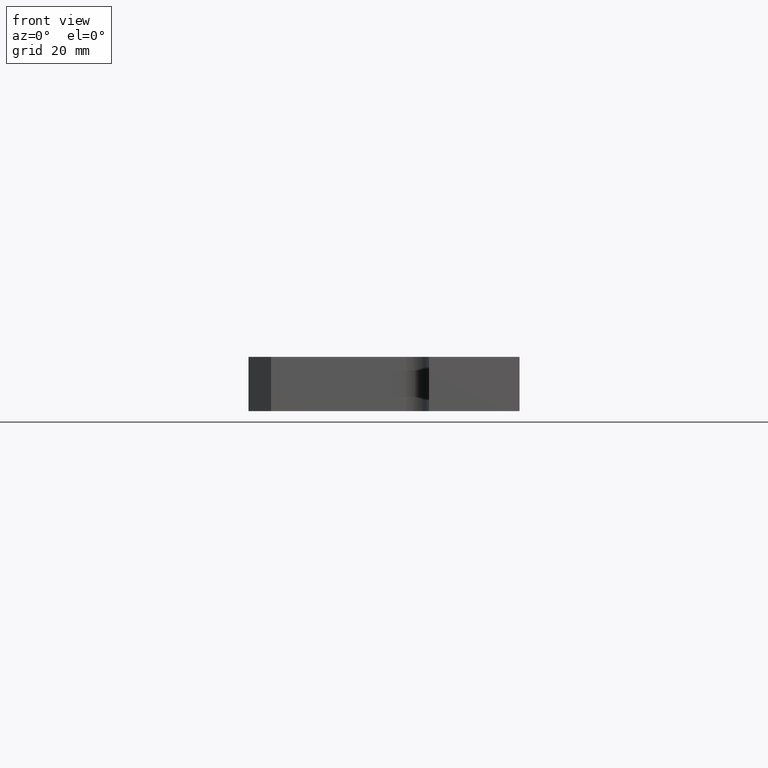
[diagram: clean part render]
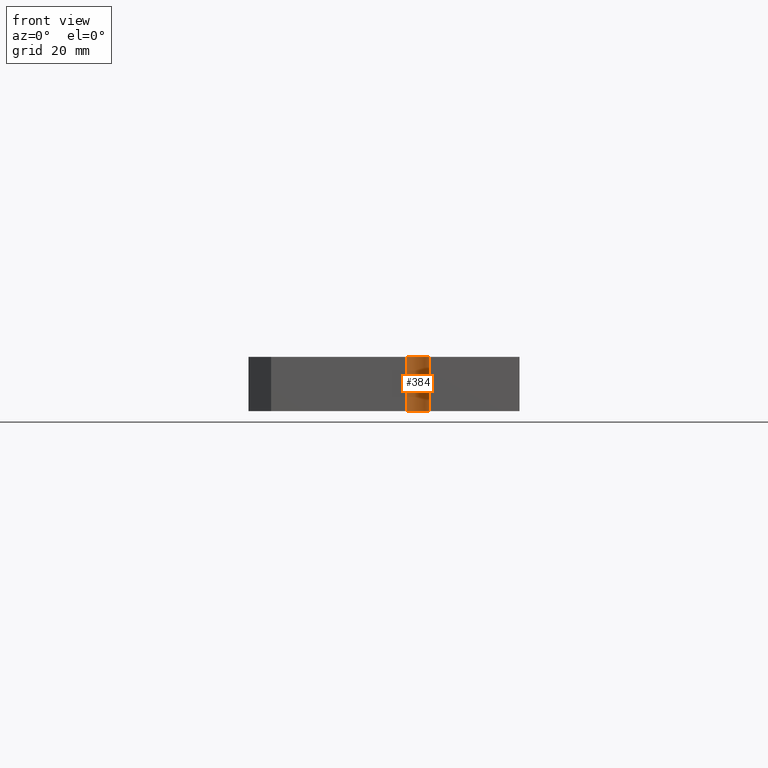
[diagram: same view with one face highlighted and labeled with its STEP entity id]
A machine part, front view. The second image highlights one B-rep face of the part: STEP entity #384.
In plain terms, the highlighted cylindrical surface (edge-blend (fillet) strip) has radius 5 mm, axis along (0, -0, 1).
Its self-contained STEP definition (entity closure, byte-faithful):
#14 = CARTESIAN_POINT ( 'NONE',  ( 34.99999999999999300, -55.00000000000000700, -6.000000000000000000 ) ) ;
#30 = CARTESIAN_POINT ( 'NONE',  ( 34.99999999999999300, -55.00000000000000700, 6.000000000000000000 ) ) ;
#86 = VECTOR ( 'NONE', #672, 1000.000000000000000 ) ;
#93 = LINE ( 'NONE', #30, #86 ) ;
#124 = VERTEX_POINT ( 'NONE', #513 ) ;
#182 = CIRCLE ( 'NONE', #272, 4.999999999999997300 ) ;
#186 = CIRCLE ( 'NONE', #255, 4.999999999999997300 ) ;
#255 = AXIS2_PLACEMENT_3D ( 'NONE', #265, #623, #618 ) ;
#260 = DIRECTION ( 'NONE',  ( 1.000000000000000000, 0.0000000000000000000, 0.0000000000000000000 ) ) ;
#265 = CARTESIAN_POINT ( 'NONE',  ( 34.99999999999999300, -60.00000000000000700, 6.000000000000000000 ) ) ;
#270 = VECTOR ( 'NONE', #344, 1000.000000000000000 ) ;
#272 = AXIS2_PLACEMENT_3D ( 'NONE', #507, #503, #260 ) ;
#277 = LINE ( 'NONE', #353, #270 ) ;
#278 = CYLINDRICAL_SURFACE ( 'NONE', #348, 4.999999999999997300 ) ;
#289 = FACE_OUTER_BOUND ( 'NONE', #613, .T. ) ;
#344 = DIRECTION ( 'NONE',  ( -0.0000000000000000000, 0.0000000000000000000, -1.000000000000000000 ) ) ;
#348 = AXIS2_PLACEMENT_3D ( 'NONE', #559, #516, #545 ) ;
#353 = CARTESIAN_POINT ( 'NONE',  ( 39.99999999999999300, -60.00000000000000700, -6.000000000000000000 ) ) ;
#384 = ADVANCED_FACE ( 'NONE', ( #289 ), #278, .F. ) ;
#415 = ORIENTED_EDGE ( 'NONE', *, *, #555, .F. ) ;
#427 = ORIENTED_EDGE ( 'NONE', *, *, #706, .F. ) ;
#430 = VERTEX_POINT ( 'NONE', #490 ) ;
#470 = EDGE_CURVE ( 'NONE', #430, #534, #277, .T. ) ;
#490 = CARTESIAN_POINT ( 'NONE',  ( 39.99999999999999300, -60.00000000000000700, 6.000000000000000000 ) ) ;
#503 = DIRECTION ( 'NONE',  ( 0.0000000000000000000, 0.0000000000000000000, 1.000000000000000000 ) ) ;
#507 = CARTESIAN_POINT ( 'NONE',  ( 34.99999999999999300, -60.00000000000000700, -6.000000000000000000 ) ) ;
#513 = CARTESIAN_POINT ( 'NONE',  ( 34.99999999999999300, -55.00000000000000700, 6.000000000000000000 ) ) ;
#516 = DIRECTION ( 'NONE',  ( 0.0000000000000000000, -0.0000000000000000000, 1.000000000000000000 ) ) ;
#534 = VERTEX_POINT ( 'NONE', #659 ) ;
#545 = DIRECTION ( 'NONE',  ( 1.000000000000000000, 0.0000000000000000000, 0.0000000000000000000 ) ) ;
#555 = EDGE_CURVE ( 'NONE', #534, #651, #182, .T. ) ;
#559 = CARTESIAN_POINT ( 'NONE',  ( 34.99999999999999300, -60.00000000000000700, 6.000000000000000000 ) ) ;
#563 = EDGE_CURVE ( 'NONE', #124, #430, #186, .T. ) ;
#591 = ORIENTED_EDGE ( 'NONE', *, *, #563, .F. ) ;
#613 = EDGE_LOOP ( 'NONE', ( #591, #427, #415, #688 ) ) ;
#618 = DIRECTION ( 'NONE',  ( 1.000000000000000000, 0.0000000000000000000, 0.0000000000000000000 ) ) ;
#623 = DIRECTION ( 'NONE',  ( -0.0000000000000000000, -0.0000000000000000000, -1.000000000000000000 ) ) ;
#651 = VERTEX_POINT ( 'NONE', #14 ) ;
#659 = CARTESIAN_POINT ( 'NONE',  ( 39.99999999999999300, -60.00000000000000700, -6.000000000000000000 ) ) ;
#672 = DIRECTION ( 'NONE',  ( -0.0000000000000000000, -0.0000000000000000000, 1.000000000000000000 ) ) ;
#688 = ORIENTED_EDGE ( 'NONE', *, *, #470, .F. ) ;
#706 = EDGE_CURVE ( 'NONE', #651, #124, #93, .T. ) ;